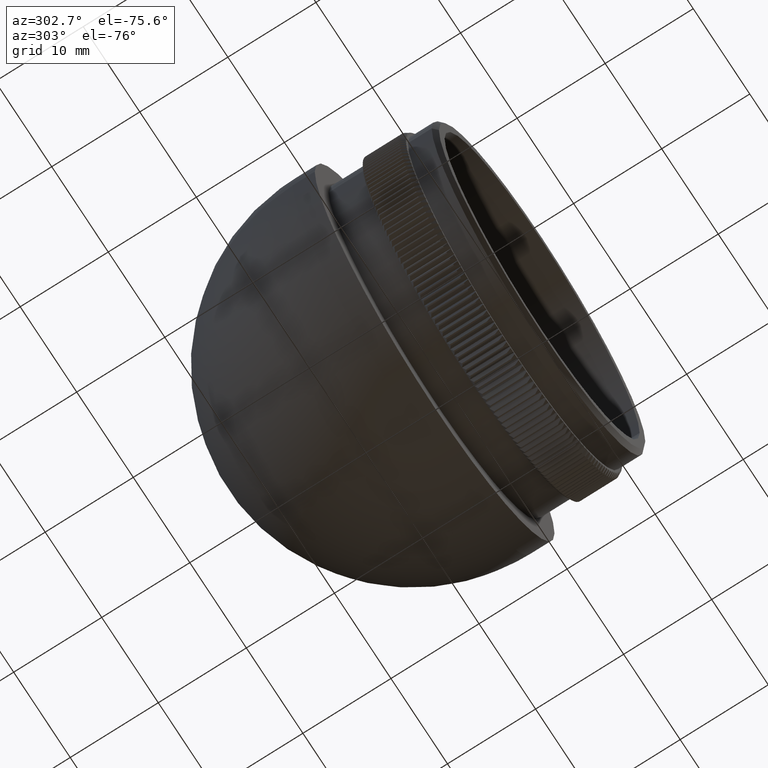
[diagram: clean part render]
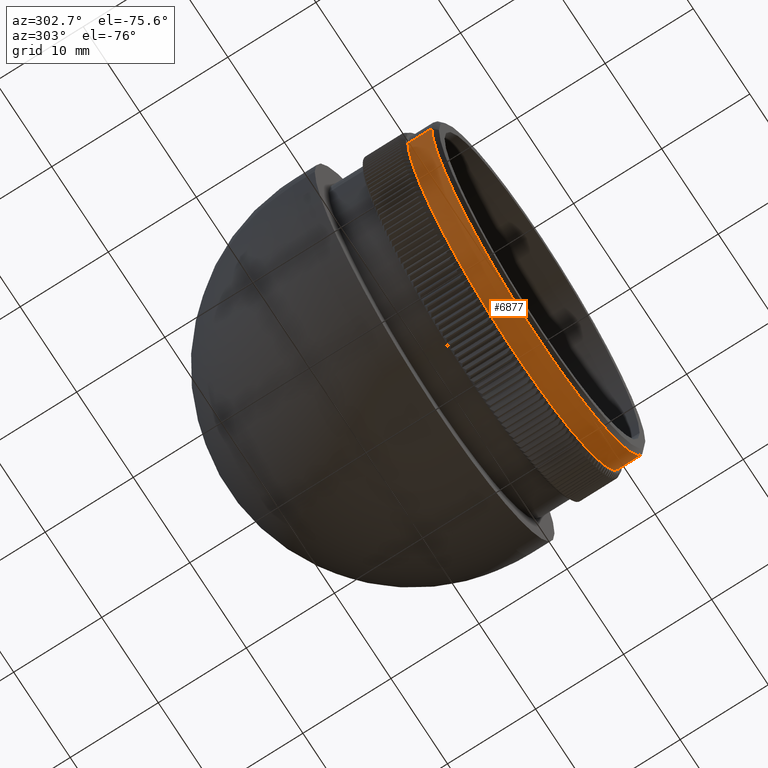
[diagram: same view with one face highlighted and labeled with its STEP entity id]
A machine part, auxiliary view. The second image highlights one B-rep face of the part: STEP entity #6877.
In plain terms, the highlighted cylindrical surface (partial cylindrical patch) has radius 18.75 mm, axis along (-0, -1, -0).
Its self-contained STEP definition (entity closure, byte-faithful):
#555 = CARTESIAN_POINT ( 'NONE',  ( 18.75000000000000000, 3.200000000000003300, 0.0000000000000000000 ) ) ;
#996 = DIRECTION ( 'NONE',  ( 1.000000000000000000, -1.387778780781442500E-015, 0.0000000000000000000 ) ) ;
#2233 = CIRCLE ( 'NONE', #24835, 18.75000000000004300 ) ;
#2632 = DIRECTION ( 'NONE',  ( -1.388827867340710000E-015, -1.000000000000000000, -0.0000000000000000000 ) ) ;
#3522 = VERTEX_POINT ( 'NONE', #6299 ) ;
#4530 = VECTOR ( 'NONE', #35812, 1000.000000000000000 ) ;
#5702 = DIRECTION ( 'NONE',  ( 1.000000000000000000, -1.387778780781442500E-015, 0.0000000000000000000 ) ) ;
#6299 = CARTESIAN_POINT ( 'NONE',  ( -18.75000000000008200, 3.200000000000055200, 2.296212748401292300E-015 ) ) ;
#6833 = LINE ( 'NONE', #35692, #4530 ) ;
#6877 = ADVANCED_FACE ( 'NONE', ( #37934 ), #22347, .T. ) ;
#9044 = ORIENTED_EDGE ( 'NONE', *, *, #24309, .T. ) ;
#9356 = DIRECTION ( 'NONE',  ( 1.388827867340712300E-015, 1.000000000000000000, 0.0000000000000000000 ) ) ;
#10293 = VERTEX_POINT ( 'NONE', #19014 ) ;
#11445 = LINE ( 'NONE', #31962, #26115 ) ;
#16565 = CARTESIAN_POINT ( 'NONE',  ( 18.75000000000000000, 0.5000000000000091000, 0.0000000000000000000 ) ) ;
#16917 = ORIENTED_EDGE ( 'NONE', *, *, #36412, .T. ) ;
#17867 = ORIENTED_EDGE ( 'NONE', *, *, #18250, .F. ) ;
#18250 = EDGE_CURVE ( 'NONE', #3522, #10293, #6833, .T. ) ;
#19014 = CARTESIAN_POINT ( 'NONE',  ( -18.75000000000008900, 0.5000000000000611700, 2.296212748401293100E-015 ) ) ;
#19561 = VERTEX_POINT ( 'NONE', #555 ) ;
#19909 = AXIS2_PLACEMENT_3D ( 'NONE', #24110, #9356, #996 ) ;
#20587 = DIRECTION ( 'NONE',  ( -1.388827867340710000E-015, -1.000000000000000000, -0.0000000000000000000 ) ) ;
#22347 = CYLINDRICAL_SURFACE ( 'NONE', #23339, 18.75000000000004300 ) ;
#23029 = CARTESIAN_POINT ( 'NONE',  ( -4.027600815288054200E-014, 3.200000000000029000, 0.0000000000000000000 ) ) ;
#23339 = AXIS2_PLACEMENT_3D ( 'NONE', #33256, #24671, #36190 ) ;
#24110 = CARTESIAN_POINT ( 'NONE',  ( -4.402584339470044500E-014, 0.5000000000000350800, 0.0000000000000000000 ) ) ;
#24309 = EDGE_CURVE ( 'NONE', #19561, #37989, #11445, .T. ) ;
#24671 = DIRECTION ( 'NONE',  ( -1.388827867340710000E-015, -1.000000000000000000, -0.0000000000000000000 ) ) ;
#24835 = AXIS2_PLACEMENT_3D ( 'NONE', #23029, #2632, #5702 ) ;
#26115 = VECTOR ( 'NONE', #20587, 1000.000000000000000 ) ;
#26132 = CIRCLE ( 'NONE', #19909, 18.75000000000004300 ) ;
#27198 = ORIENTED_EDGE ( 'NONE', *, *, #35198, .T. ) ;
#29125 = EDGE_LOOP ( 'NONE', ( #17867, #16917, #9044, #27198 ) ) ;
#31962 = CARTESIAN_POINT ( 'NONE',  ( 18.75000000000004300, 32.19999999999996700, 0.0000000000000000000 ) ) ;
#33256 = CARTESIAN_POINT ( 'NONE',  ( 0.0000000000000000000, 32.19999999999999600, 0.0000000000000000000 ) ) ;
#35198 = EDGE_CURVE ( 'NONE', #37989, #10293, #26132, .T. ) ;
#35692 = CARTESIAN_POINT ( 'NONE',  ( -18.75000000000004300, 32.20000000000001700, 2.296212748401292700E-015 ) ) ;
#35812 = DIRECTION ( 'NONE',  ( -1.388827867340710000E-015, -1.000000000000000000, -0.0000000000000000000 ) ) ;
#36190 = DIRECTION ( 'NONE',  ( 1.000000000000000000, -1.480297366166872100E-015, 0.0000000000000000000 ) ) ;
#36412 = EDGE_CURVE ( 'NONE', #3522, #19561, #2233, .T. ) ;
#37934 = FACE_OUTER_BOUND ( 'NONE', #29125, .T. ) ;
#37989 = VERTEX_POINT ( 'NONE', #16565 ) ;